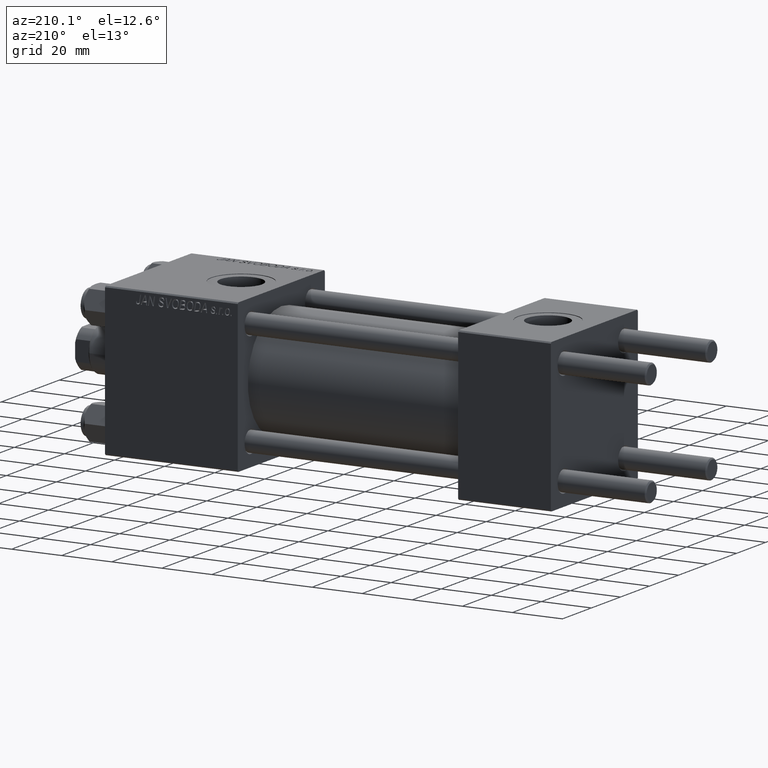
[diagram: clean part render]
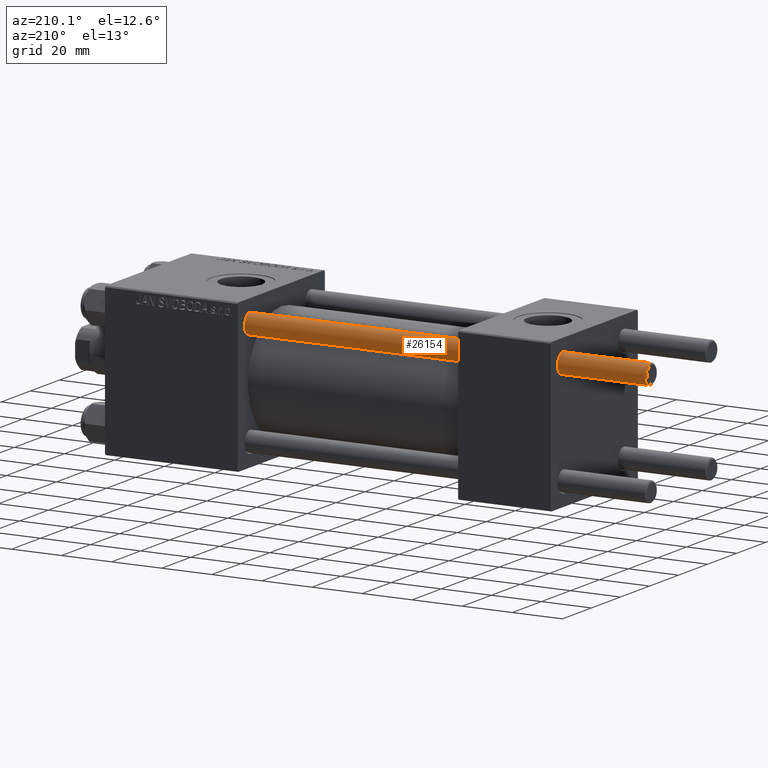
[diagram: same view with one face highlighted and labeled with its STEP entity id]
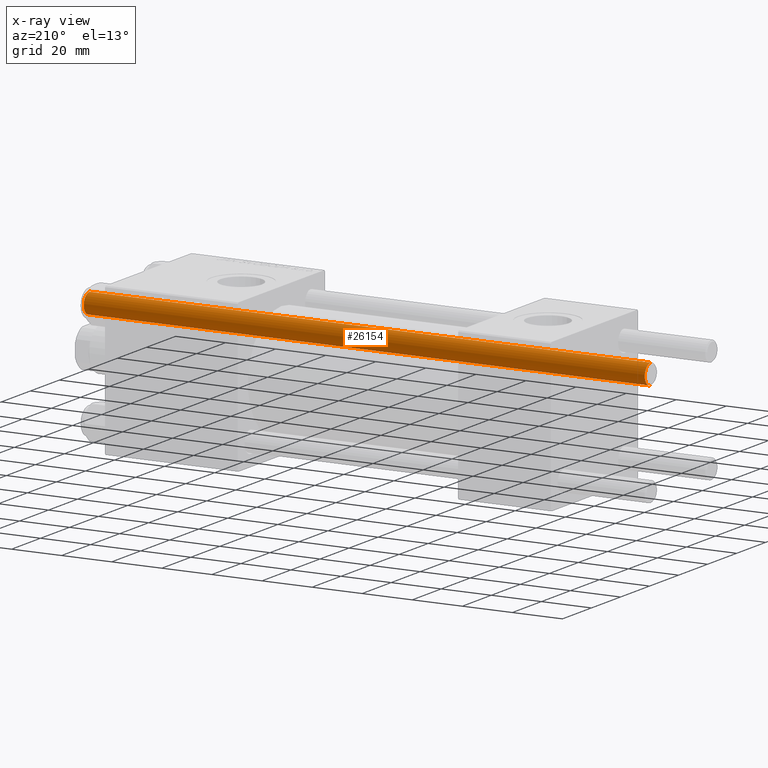
[diagram: x-ray of the same camera — body ghosted, the highlighted face saturated]
A machine part, auxiliary view. The second image highlights one B-rep face of the part: STEP entity #26154.
The next image is the same camera in x-ray: the body ghosted, the highlighted face saturated — about 0% of this face is hidden behind the body in this view.
In plain terms, the highlighted cylindrical surface (edge-blend (fillet) strip) has radius 4 mm, axis along (-1, -0, -0).
Its self-contained STEP definition (entity closure, byte-faithful):
#2706 = CARTESIAN_POINT ( 'NONE',  ( 4.000000000000000000, 4.898587196589412829E-16, 224.5000000000000000 ) ) ;
#2915 = CARTESIAN_POINT ( 'NONE',  ( -4.000000000000000000, 0.000000000000000000, 225.0000000000000000 ) ) ;
#3499 = CARTESIAN_POINT ( 'NONE',  ( 4.000000000000000000, 4.898587196589412829E-16, 225.0000000000000000 ) ) ;
#4257 = VERTEX_POINT ( 'NONE', #11239 ) ;
#5529 = DIRECTION ( 'NONE',  ( 0.000000000000000000, 0.000000000000000000, -1.000000000000000000 ) ) ;
#5957 = LINE ( 'NONE', #2915, #8636 ) ;
#8636 = VECTOR ( 'NONE', #33275, 1000.000000000000000 ) ;
#8843 = VERTEX_POINT ( 'NONE', #11086 ) ;
#10016 = AXIS2_PLACEMENT_3D ( 'NONE', #43512, #5529, #20942 ) ;
#10497 = DIRECTION ( 'NONE',  ( -0.000000000000000000, -0.000000000000000000, 1.000000000000000000 ) ) ;
#11086 = CARTESIAN_POINT ( 'NONE',  ( -4.000000000000000000, 0.000000000000000000, 0.5000000000000281997 ) ) ;
#11239 = CARTESIAN_POINT ( 'NONE',  ( 4.000000000000000000, 4.898587196589412829E-16, 0.5000000000000281997 ) ) ;
#13709 = EDGE_CURVE ( 'NONE', #4257, #8843, #47916, .T. ) ;
#15062 = DIRECTION ( 'NONE',  ( 1.000000000000000000, 0.000000000000000000, 0.000000000000000000 ) ) ;
#15096 = DIRECTION ( 'NONE',  ( -0.000000000000000000, -0.000000000000000000, -1.000000000000000000 ) ) ;
#19686 = VECTOR ( 'NONE', #45758, 1000.000000000000000 ) ;
#20942 = DIRECTION ( 'NONE',  ( 1.000000000000000000, 0.000000000000000000, 0.000000000000000000 ) ) ;
#26154 = ADVANCED_FACE ( 'NONE', ( #42159 ), #45457, .T. ) ;
#29571 = VERTEX_POINT ( 'NONE', #33286 ) ;
#29582 = ORIENTED_EDGE ( 'NONE', *, *, #32680, .T. ) ;
#29772 = DIRECTION ( 'NONE',  ( -1.000000000000000000, 0.000000000000000000, 0.000000000000000000 ) ) ;
#32511 = AXIS2_PLACEMENT_3D ( 'NONE', #38615, #15096, #29772 ) ;
#32680 = EDGE_CURVE ( 'NONE', #29571, #43676, #45566, .T. ) ;
#32849 = EDGE_CURVE ( 'NONE', #43676, #4257, #42712, .T. ) ;
#33275 = DIRECTION ( 'NONE',  ( -0.000000000000000000, -0.000000000000000000, -1.000000000000000000 ) ) ;
#33286 = CARTESIAN_POINT ( 'NONE',  ( -4.000000000000000000, 0.000000000000000000, 224.5000000000000000 ) ) ;
#38615 = CARTESIAN_POINT ( 'NONE',  ( 0.000000000000000000, 0.000000000000000000, 225.0000000000000000 ) ) ;
#39166 = EDGE_LOOP ( 'NONE', ( #29582, #44868, #41035, #49752 ) ) ;
#40669 = AXIS2_PLACEMENT_3D ( 'NONE', #43678, #10497, #15062 ) ;
#41035 = ORIENTED_EDGE ( 'NONE', *, *, #13709, .T. ) ;
#42159 = FACE_OUTER_BOUND ( 'NONE', #39166, .T. ) ;
#42712 = LINE ( 'NONE', #3499, #19686 ) ;
#43512 = CARTESIAN_POINT ( 'NONE',  ( 0.000000000000000000, 0.000000000000000000, 224.5000000000000000 ) ) ;
#43676 = VERTEX_POINT ( 'NONE', #2706 ) ;
#43678 = CARTESIAN_POINT ( 'NONE',  ( 0.000000000000000000, 0.000000000000000000, 0.5000000000000281997 ) ) ;
#44868 = ORIENTED_EDGE ( 'NONE', *, *, #32849, .T. ) ;
#45000 = EDGE_CURVE ( 'NONE', #29571, #8843, #5957, .T. ) ;
#45457 = CYLINDRICAL_SURFACE ( 'NONE', #32511, 4.000000000000000000 ) ;
#45566 = CIRCLE ( 'NONE', #10016, 4.000000000000000000 ) ;
#45758 = DIRECTION ( 'NONE',  ( -0.000000000000000000, -0.000000000000000000, -1.000000000000000000 ) ) ;
#47916 = CIRCLE ( 'NONE', #40669, 4.000000000000000000 ) ;
#49752 = ORIENTED_EDGE ( 'NONE', *, *, #45000, .F. ) ;